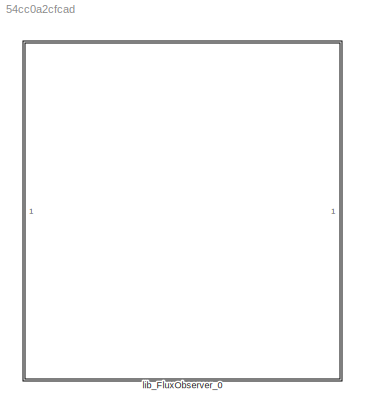
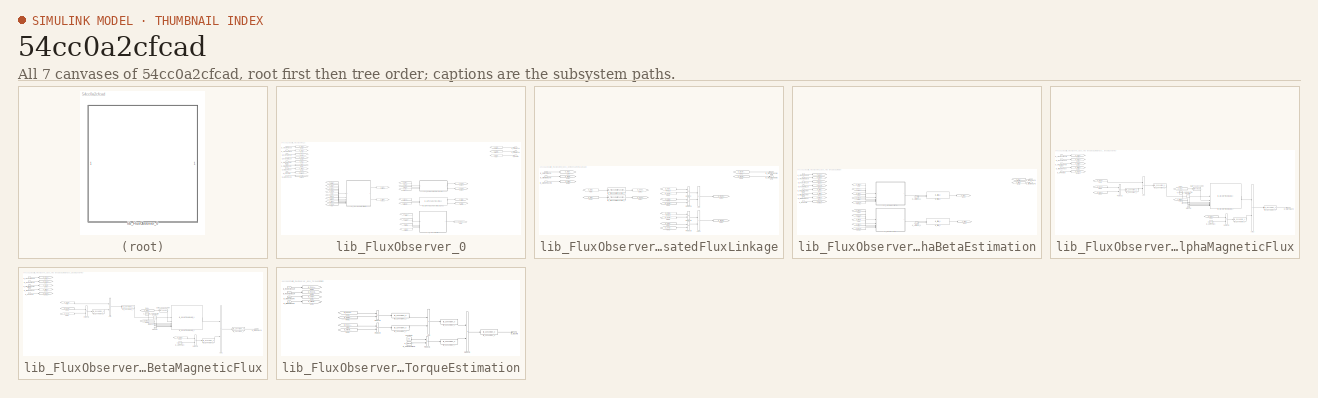
[diagram: thumbnail index - all 7 canvases of the model, root first then tree order]
MODEL slx_54cc0a2cfcad
KIND library
CONFIG AbsTol = auto
CONFIG EnableMultiTasking = off
CONFIG FixedStep = auto
CONFIG MaxStep = auto
CONFIG MinStep = auto
CONFIG RelTol = 1e-3
CONFIG SampleTimeConstraint = Unconstrained
CONFIG SolverName = VariableStepAuto
CONFIG StartTime = 0.0
CONFIG StopTime = 10.0
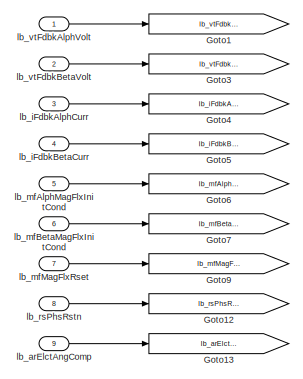
[diagram: lib_FluxObserver_0 - part 1/4, top left region]
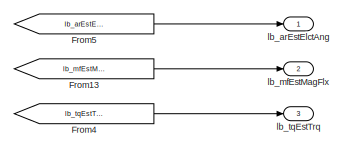
[diagram: lib_FluxObserver_0 - part 2/4, top right region]
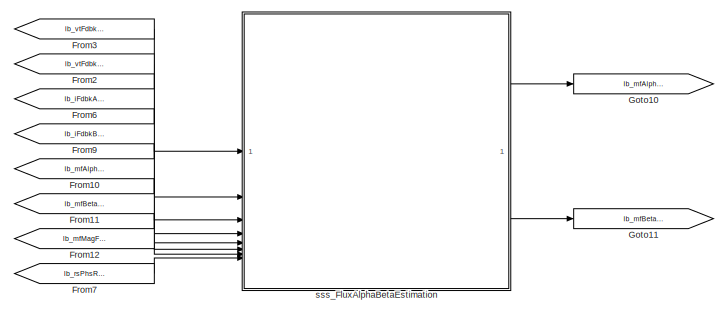
[diagram: lib_FluxObserver_0 - part 3/4, middle left region]
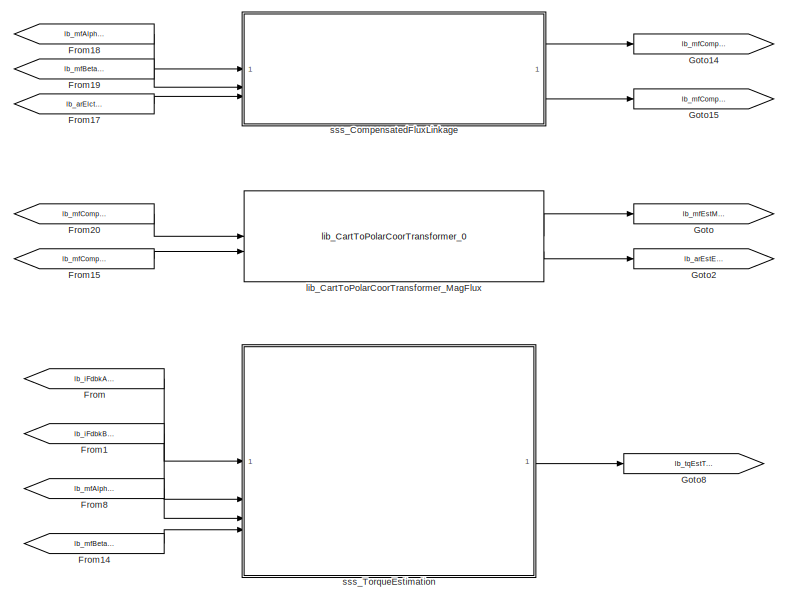
[diagram: lib_FluxObserver_0 - part 4/4, bottom center region]
BLOCK [SubSystem] lib_FluxObserver_0
BLOCK [From] lib_FluxObserver_0/From
  GotoTag = lb_iFdbkAlphCurr
BLOCK [From] lib_FluxObserver_0/From1
  GotoTag = lb_iFdbkBetaCurr
BLOCK [From] lib_FluxObserver_0/From10
  GotoTag = lb_mfAlphMagFlxInitCond
BLOCK [From] lib_FluxObserver_0/From11
  GotoTag = lb_mfBetaMagFlxInitCond
BLOCK [From] lib_FluxObserver_0/From12
  GotoTag = lb_mfMagFlxRset
BLOCK [From] lib_FluxObserver_0/From13
  GotoTag = lb_mfEstMagFlx
BLOCK [From] lib_FluxObserver_0/From14
  GotoTag = lb_mfBetaMagFlx
BLOCK [From] lib_FluxObserver_0/From15
  GotoTag = lb_mfCompBetaMagFlx
BLOCK [From] lib_FluxObserver_0/From17
  GotoTag = lb_arElctAngComp
BLOCK [From] lib_FluxObserver_0/From18
  GotoTag = lb_mfAlphMagFlx
BLOCK [From] lib_FluxObserver_0/From19
  GotoTag = lb_mfBetaMagFlx
BLOCK [From] lib_FluxObserver_0/From2
  GotoTag = lb_vtFdbkBetaVolt
BLOCK [From] lib_FluxObserver_0/From20
  GotoTag = lb_mfCompAlphMagFlx
BLOCK [From] lib_FluxObserver_0/From3
  GotoTag = lb_vtFdbkAlphVolt
BLOCK [From] lib_FluxObserver_0/From4
  GotoTag = lb_tqEstTrq
BLOCK [From] lib_FluxObserver_0/From5
  GotoTag = lb_arEstElctAng
BLOCK [From] lib_FluxObserver_0/From6
  GotoTag = lb_iFdbkAlphCurr
BLOCK [From] lib_FluxObserver_0/From7
  GotoTag = lb_rsPhsRstn
BLOCK [From] lib_FluxObserver_0/From8
  GotoTag = lb_mfAlphMagFlx
BLOCK [From] lib_FluxObserver_0/From9
  GotoTag = lb_iFdbkBetaCurr
BLOCK [Goto] lib_FluxObserver_0/Goto
  GotoTag = lb_mfEstMagFlx
BLOCK [Goto] lib_FluxObserver_0/Goto1
  GotoTag = lb_vtFdbkAlphVolt
BLOCK [Goto] lib_FluxObserver_0/Goto10
  GotoTag = lb_mfAlphMagFlx
BLOCK [Goto] lib_FluxObserver_0/Goto11
  GotoTag = lb_mfBetaMagFlx
BLOCK [Goto] lib_FluxObserver_0/Goto12
  GotoTag = lb_rsPhsRstn
BLOCK [Goto] lib_FluxObserver_0/Goto13
  GotoTag = lb_arElctAngComp
BLOCK [Goto] lib_FluxObserver_0/Goto14
  GotoTag = lb_mfCompAlphMagFlx
BLOCK [Goto] lib_FluxObserver_0/Goto15
  GotoTag = lb_mfCompBetaMagFlx
BLOCK [Goto] lib_FluxObserver_0/Goto2
  GotoTag = lb_arEstElctAng
BLOCK [Goto] lib_FluxObserver_0/Goto3
  GotoTag = lb_vtFdbkBetaVolt
BLOCK [Goto] lib_FluxObserver_0/Goto4
  GotoTag = lb_iFdbkAlphCurr
BLOCK [Goto] lib_FluxObserver_0/Goto5
  GotoTag = lb_iFdbkBetaCurr
BLOCK [Goto] lib_FluxObserver_0/Goto6
  GotoTag = lb_mfAlphMagFlxInitCond
BLOCK [Goto] lib_FluxObserver_0/Goto7
  GotoTag = lb_mfBetaMagFlxInitCond
BLOCK [Goto] lib_FluxObserver_0/Goto8
  GotoTag = lb_tqEstTrq
BLOCK [Goto] lib_FluxObserver_0/Goto9
  GotoTag = lb_mfMagFlxRset
BLOCK [Inport] lib_FluxObserver_0/lb_arElctAngComp
  OutDataTypeStr = fixdt(0,16,pi*2^-15,0)
  Port = 9
BLOCK [Outport] lib_FluxObserver_0/lb_arEstElctAng
BLOCK [Inport] lib_FluxObserver_0/lb_iFdbkAlphCurr
  Port = 3
BLOCK [Inport] lib_FluxObserver_0/lb_iFdbkBetaCurr
  Port = 4
BLOCK [Inport] lib_FluxObserver_0/lb_mfAlphMagFlxInitCond
  Port = 5
BLOCK [Inport] lib_FluxObserver_0/lb_mfBetaMagFlxInitCond
  Port = 6
BLOCK [Outport] lib_FluxObserver_0/lb_mfEstMagFlx
  Port = 2
BLOCK [Inport] lib_FluxObserver_0/lb_mfMagFlxRset
  Port = 7
BLOCK [Inport] lib_FluxObserver_0/lb_rsPhsRstn
  Port = 8
BLOCK [Outport] lib_FluxObserver_0/lb_tqEstTrq
  Port = 3
BLOCK [Inport] lib_FluxObserver_0/lb_vtFdbkAlphVolt
BLOCK [Inport] lib_FluxObserver_0/lb_vtFdbkBetaVolt
  Port = 2
BLOCK [Reference] lib_FluxObserver_0/lib_CartToPolarCoorTransformer_MagFlux  REF=lib_cart_to_polar_coor_transformer/lib_CartToPolarCoorTransformer_0  (lib defined in slx_ee88def4c4dc)
  SourceBlock = lib_cart_to_polar_coor_transformer/lib_CartToPolarCoorTransformer_0
BLOCK [SubSystem] lib_FluxObserver_0/sss_CompensatedFluxLinkage
BLOCK [Sum] lib_FluxObserver_0/sss_CompensatedFluxLinkage/Add
  IconShape = rectangular
  Inputs = +-
  OutDataTypeStr = Inherit: Same as first input
BLOCK [Sum] lib_FluxObserver_0/sss_CompensatedFluxLinkage/Add1
  IconShape = rectangular
  OutDataTypeStr = Inherit: Same as first input
BLOCK [From] lib_FluxObserver_0/sss_CompensatedFluxLinkage/From
  GotoTag = lb_arElctAngComp
BLOCK [From] lib_FluxObserver_0/sss_CompensatedFluxLinkage/From1
  GotoTag = lb_arElctAngComp
BLOCK [From] lib_FluxObserver_0/sss_CompensatedFluxLinkage/From18
  GotoTag = lb_mfAlphMagFlx
BLOCK [From] lib_FluxObserver_0/sss_CompensatedFluxLinkage/From19
  GotoTag = lb_mfBetaMagFlx
BLOCK [From] lib_FluxObserver_0/sss_CompensatedFluxLinkage/From2
  GotoTag = lb_genElctAngCompCos
BLOCK [From] lib_FluxObserver_0/sss_CompensatedFluxLinkage/From3
  GotoTag = lb_genElctAngCompCos
BLOCK [From] lib_FluxObserver_0/sss_CompensatedFluxLinkage/From4
  GotoTag = lb_genElctAngCompSin
BLOCK [From] lib_FluxObserver_0/sss_CompensatedFluxLinkage/From5
  GotoTag = lb_mfBetaMagFlx
BLOCK [From] lib_FluxObserver_0/sss_CompensatedFluxLinkage/From6
  GotoTag = lb_mfCompAlphMagFlx
BLOCK [From] lib_FluxObserver_0/sss_CompensatedFluxLinkage/From7
  GotoTag = lb_mfAlphMagFlx
BLOCK [From] lib_FluxObserver_0/sss_CompensatedFluxLinkage/From8
  GotoTag = lb_genElctAngCompSin
BLOCK [From] lib_FluxObserver_0/sss_CompensatedFluxLinkage/From9
  GotoTag = lb_mfCompBetaMagFlx
BLOCK [Goto] lib_FluxObserver_0/sss_CompensatedFluxLinkage/Goto
  GotoTag = lb_mfAlphMagFlx
BLOCK [Goto] lib_FluxObserver_0/sss_CompensatedFluxLinkage/Goto1
  GotoTag = lb_mfBetaMagFlx
BLOCK [Goto] lib_FluxObserver_0/sss_CompensatedFluxLinkage/Goto2
  GotoTag = lb_arElctAngComp
BLOCK [Goto] lib_FluxObserver_0/sss_CompensatedFluxLinkage/Goto3
  GotoTag = lb_genElctAngCompSin
BLOCK [Goto] lib_FluxObserver_0/sss_CompensatedFluxLinkage/Goto4
  GotoTag = lb_genElctAngCompCos
BLOCK [Goto] lib_FluxObserver_0/sss_CompensatedFluxLinkage/Goto5
  GotoTag = lb_mfCompAlphMagFlx
BLOCK [Goto] lib_FluxObserver_0/sss_CompensatedFluxLinkage/Goto6
  GotoTag = lb_mfCompBetaMagFlx
BLOCK [Product] lib_FluxObserver_0/sss_CompensatedFluxLinkage/Product
  OutDataTypeStr = Inherit: Same as first input
BLOCK [Product] lib_FluxObserver_0/sss_CompensatedFluxLinkage/Product1
  OutDataTypeStr = Inherit: Same as first input
BLOCK [Product] lib_FluxObserver_0/sss_CompensatedFluxLinkage/Product2
  OutDataTypeStr = Inherit: Same as first input
BLOCK [Product] lib_FluxObserver_0/sss_CompensatedFluxLinkage/Product3
  OutDataTypeStr = Inherit: Same as first input
BLOCK [Inport] lib_FluxObserver_0/sss_CompensatedFluxLinkage/lb_arElctAngComp
  Port = 3
BLOCK [Inport] lib_FluxObserver_0/sss_CompensatedFluxLinkage/lb_mfAlphMagFlx
BLOCK [Inport] lib_FluxObserver_0/sss_CompensatedFluxLinkage/lb_mfBetaMagFlx
  Port = 2
BLOCK [Outport] lib_FluxObserver_0/sss_CompensatedFluxLinkage/lb_mfCompAlphMagFlx
BLOCK [Outport] lib_FluxObserver_0/sss_CompensatedFluxLinkage/lb_mfCompBetaMagFlx
  Port = 2
BLOCK [Reference] lib_FluxObserver_0/sss_CompensatedFluxLinkage/lib_TrigonometricFunction_1  REF=lib_trigonometric_function/lib_TrigonometricFunction_0  (lib defined in slx_582fdfe82842)
  SourceBlock = lib_trigonometric_function/lib_TrigonometricFunction_0
BLOCK [Reference] lib_FluxObserver_0/sss_CompensatedFluxLinkage/lib_TrigonometricFunction_2  REF=lib_trigonometric_function/lib_TrigonometricFunction_0  (lib defined in slx_582fdfe82842)
  SourceBlock = lib_trigonometric_function/lib_TrigonometricFunction_0
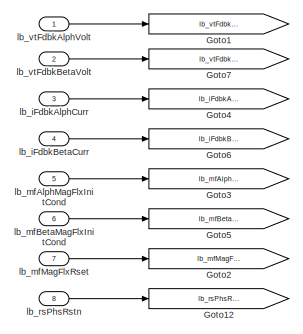
[diagram: lib_FluxObserver_0/sss_FluxAlphaBetaEstimation - part 1/3, top left region]
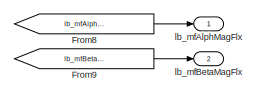
[diagram: lib_FluxObserver_0/sss_FluxAlphaBetaEstimation - part 2/3, top right region]
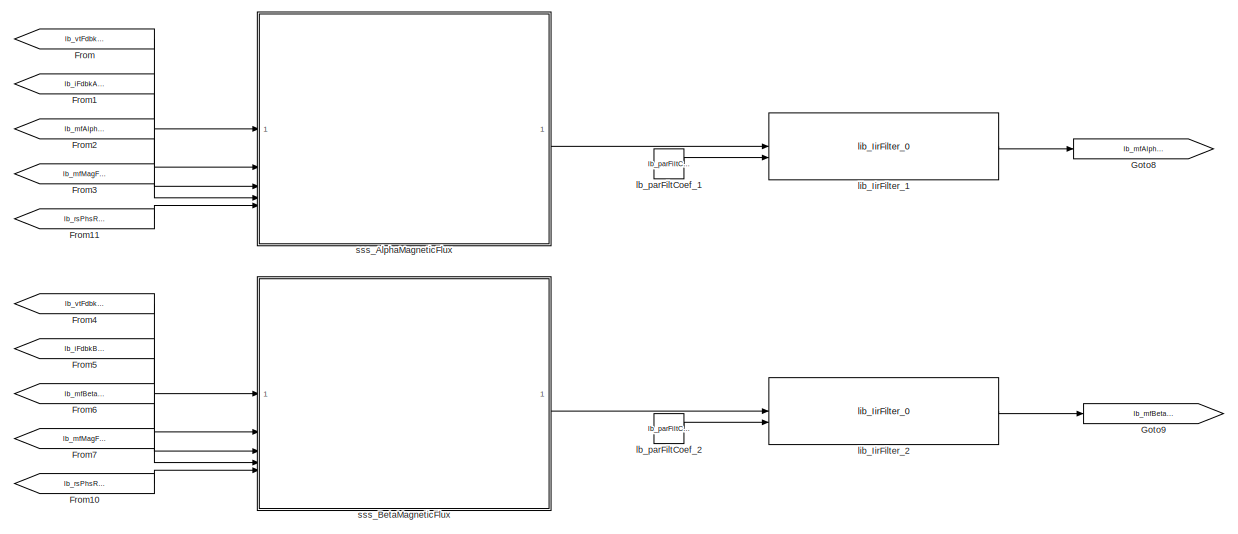
[diagram: lib_FluxObserver_0/sss_FluxAlphaBetaEstimation - part 3/3, center side, full height]
BLOCK [SubSystem] lib_FluxObserver_0/sss_FluxAlphaBetaEstimation
BLOCK [From] lib_FluxObserver_0/sss_FluxAlphaBetaEstimation/From
  GotoTag = lb_vtFdbkAlphVolt
BLOCK [From] lib_FluxObserver_0/sss_FluxAlphaBetaEstimation/From1
  GotoTag = lb_iFdbkAlphCurr
BLOCK [From] lib_FluxObserver_0/sss_FluxAlphaBetaEstimation/From10
  GotoTag = lb_rsPhsRstn
BLOCK [From] lib_FluxObserver_0/sss_FluxAlphaBetaEstimation/From11
  GotoTag = lb_rsPhsRstn
BLOCK [From] lib_FluxObserver_0/sss_FluxAlphaBetaEstimation/From2
  GotoTag = lb_mfAlphMagFlxInitCond
BLOCK [From] lib_FluxObserver_0/sss_FluxAlphaBetaEstimation/From3
  GotoTag = lb_mfMagFlxRset
BLOCK [From] lib_FluxObserver_0/sss_FluxAlphaBetaEstimation/From4
  GotoTag = lb_vtFdbkBetaVolt
BLOCK [From] lib_FluxObserver_0/sss_FluxAlphaBetaEstimation/From5
  GotoTag = lb_iFdbkBetaCurr
BLOCK [From] lib_FluxObserver_0/sss_FluxAlphaBetaEstimation/From6
  GotoTag = lb_mfBetaMagFlxInitCond
BLOCK [From] lib_FluxObserver_0/sss_FluxAlphaBetaEstimation/From7
  GotoTag = lb_mfMagFlxRset
BLOCK [From] lib_FluxObserver_0/sss_FluxAlphaBetaEstimation/From8
  GotoTag = lb_mfAlphMagFlx
BLOCK [From] lib_FluxObserver_0/sss_FluxAlphaBetaEstimation/From9
  GotoTag = lb_mfBetaMagFlx
BLOCK [Goto] lib_FluxObserver_0/sss_FluxAlphaBetaEstimation/Goto1
  GotoTag = lb_vtFdbkAlphVolt
BLOCK [Goto] lib_FluxObserver_0/sss_FluxAlphaBetaEstimation/Goto12
  GotoTag = lb_rsPhsRstn
BLOCK [Goto] lib_FluxObserver_0/sss_FluxAlphaBetaEstimation/Goto2
  GotoTag = lb_mfMagFlxRset
BLOCK [Goto] lib_FluxObserver_0/sss_FluxAlphaBetaEstimation/Goto3
  GotoTag = lb_mfAlphMagFlxInitCond
BLOCK [Goto] lib_FluxObserver_0/sss_FluxAlphaBetaEstimation/Goto4
  GotoTag = lb_iFdbkAlphCurr
BLOCK [Goto] lib_FluxObserver_0/sss_FluxAlphaBetaEstimation/Goto5
  GotoTag = lb_mfBetaMagFlxInitCond
BLOCK [Goto] lib_FluxObserver_0/sss_FluxAlphaBetaEstimation/Goto6
  GotoTag = lb_iFdbkBetaCurr
BLOCK [Goto] lib_FluxObserver_0/sss_FluxAlphaBetaEstimation/Goto7
  GotoTag = lb_vtFdbkBetaVolt
BLOCK [Goto] lib_FluxObserver_0/sss_FluxAlphaBetaEstimation/Goto8
  GotoTag = lb_mfAlphMagFlx
BLOCK [Goto] lib_FluxObserver_0/sss_FluxAlphaBetaEstimation/Goto9
  GotoTag = lb_mfBetaMagFlx
BLOCK [Inport] lib_FluxObserver_0/sss_FluxAlphaBetaEstimation/lb_iFdbkAlphCurr
  Port = 3
BLOCK [Inport] lib_FluxObserver_0/sss_FluxAlphaBetaEstimation/lb_iFdbkBetaCurr
  Port = 4
BLOCK [Outport] lib_FluxObserver_0/sss_FluxAlphaBetaEstimation/lb_mfAlphMagFlx
BLOCK [Inport] lib_FluxObserver_0/sss_FluxAlphaBetaEstimation/lb_mfAlphMagFlxInitCond
  Port = 5
BLOCK [Outport] lib_FluxObserver_0/sss_FluxAlphaBetaEstimation/lb_mfBetaMagFlx
  Port = 2
BLOCK [Inport] lib_FluxObserver_0/sss_FluxAlphaBetaEstimation/lb_mfBetaMagFlxInitCond
  Port = 6
BLOCK [Inport] lib_FluxObserver_0/sss_FluxAlphaBetaEstimation/lb_mfMagFlxRset
  Port = 7
BLOCK [Constant] lib_FluxObserver_0/sss_FluxAlphaBetaEstimation/lb_parFiltCoef_1
  Value = lb_parFiltCoef
BLOCK [Constant] lib_FluxObserver_0/sss_FluxAlphaBetaEstimation/lb_parFiltCoef_2
  Value = lb_parFiltCoef
BLOCK [Inport] lib_FluxObserver_0/sss_FluxAlphaBetaEstimation/lb_rsPhsRstn
  Port = 8
BLOCK [Inport] lib_FluxObserver_0/sss_FluxAlphaBetaEstimation/lb_vtFdbkAlphVolt
BLOCK [Inport] lib_FluxObserver_0/sss_FluxAlphaBetaEstimation/lb_vtFdbkBetaVolt
  Port = 2
BLOCK [Reference] lib_FluxObserver_0/sss_FluxAlphaBetaEstimation/lib_IirFilter_1  REF=lib_iir_filter/lib_IirFilter_0  (lib defined in slx_5c8a7357b118)
  SourceBlock = lib_iir_filter/lib_IirFilter_0
BLOCK [Reference] lib_FluxObserver_0/sss_FluxAlphaBetaEstimation/lib_IirFilter_2  REF=lib_iir_filter/lib_IirFilter_0  (lib defined in slx_5c8a7357b118)
  SourceBlock = lib_iir_filter/lib_IirFilter_0
BLOCK [SubSystem] lib_FluxObserver_0/sss_FluxAlphaBetaEstimation/sss_AlphaMagneticFlux
BLOCK [Sum] lib_FluxObserver_0/sss_FluxAlphaBetaEstimation/sss_AlphaMagneticFlux/Add
  IconShape = rectangular
  Inputs = +-
  OutDataTypeStr = Inherit: Inherit via back propagation
BLOCK [Sum] lib_FluxObserver_0/sss_FluxAlphaBetaEstimation/sss_AlphaMagneticFlux/Add2
  IconShape = rectangular
  Inputs = +-
  OutDataTypeStr = Inherit: Inherit via back propagation
BLOCK [Constant] lib_FluxObserver_0/sss_FluxAlphaBetaEstimation/sss_AlphaMagneticFlux/Constant
  OutDataTypeStr = uint8
  Value = 0
BLOCK [DataTypeConversion] lib_FluxObserver_0/sss_FluxAlphaBetaEstimation/sss_AlphaMagneticFlux/Data Type Conversion
  RndMeth = Floor
  SaturateOnIntegerOverflow = off
BLOCK [From] lib_FluxObserver_0/sss_FluxAlphaBetaEstimation/sss_AlphaMagneticFlux/From
  GotoTag = lb_vtFdbkAlphVolt
BLOCK [From] lib_FluxObserver_0/sss_FluxAlphaBetaEstimation/sss_AlphaMagneticFlux/From1
  GotoTag = lb_iFdbkAlphCurr
BLOCK [From] lib_FluxObserver_0/sss_FluxAlphaBetaEstimation/sss_AlphaMagneticFlux/From2
  GotoTag = lb_iFdbkAlphCurr
BLOCK [From] lib_FluxObserver_0/sss_FluxAlphaBetaEstimation/sss_AlphaMagneticFlux/From3
  GotoTag = lb_mfMagFlxRset
BLOCK [From] lib_FluxObserver_0/sss_FluxAlphaBetaEstimation/sss_AlphaMagneticFlux/From4
  GotoTag = lb_mfAlphMagFlxInitCond
BLOCK [From] lib_FluxObserver_0/sss_FluxAlphaBetaEstimation/sss_AlphaMagneticFlux/From5
  GotoTag = lb_rsPhsRstn
BLOCK [Goto] lib_FluxObserver_0/sss_FluxAlphaBetaEstimation/sss_AlphaMagneticFlux/Goto1
  GotoTag = lb_vtFdbkAlphVolt
BLOCK [Goto] lib_FluxObserver_0/sss_FluxAlphaBetaEstimation/sss_AlphaMagneticFlux/Goto12
  GotoTag = lb_rsPhsRstn
BLOCK [Goto] lib_FluxObserver_0/sss_FluxAlphaBetaEstimation/sss_AlphaMagneticFlux/Goto2
  GotoTag = lb_mfMagFlxRset
BLOCK [Goto] lib_FluxObserver_0/sss_FluxAlphaBetaEstimation/sss_AlphaMagneticFlux/Goto3
  GotoTag = lb_mfAlphMagFlxInitCond
BLOCK [Goto] lib_FluxObserver_0/sss_FluxAlphaBetaEstimation/sss_AlphaMagneticFlux/Goto4
  GotoTag = lb_iFdbkAlphCurr
BLOCK [Ground] lib_FluxObserver_0/sss_FluxAlphaBetaEstimation/sss_AlphaMagneticFlux/Ground1
BLOCK [Ground] lib_FluxObserver_0/sss_FluxAlphaBetaEstimation/sss_AlphaMagneticFlux/Ground2
BLOCK [Product] lib_FluxObserver_0/sss_FluxAlphaBetaEstimation/sss_AlphaMagneticFlux/Product1
  OutDataTypeStr = Inherit: Inherit via back propagation
BLOCK [Product] lib_FluxObserver_0/sss_FluxAlphaBetaEstimation/sss_AlphaMagneticFlux/Product3
  OutDataTypeStr = Inherit: Inherit via back propagation
BLOCK [Inport] lib_FluxObserver_0/sss_FluxAlphaBetaEstimation/sss_AlphaMagneticFlux/lb_iFdbkAlphCurr
  Port = 2
BLOCK [Outport] lib_FluxObserver_0/sss_FluxAlphaBetaEstimation/sss_AlphaMagneticFlux/lb_mfAlphMagFlx
BLOCK [Inport] lib_FluxObserver_0/sss_FluxAlphaBetaEstimation/sss_AlphaMagneticFlux/lb_mfAlphMagFlxInitCond
  Port = 3
BLOCK [Inport] lib_FluxObserver_0/sss_FluxAlphaBetaEstimation/sss_AlphaMagneticFlux/lb_mfMagFlxRset
  Port = 4
BLOCK [Constant] lib_FluxObserver_0/sss_FluxAlphaBetaEstimation/sss_AlphaMagneticFlux/lb_parPhsIndc
  Value = lb_parPhsIndc
BLOCK [Constant] lib_FluxObserver_0/sss_FluxAlphaBetaEstimation/sss_AlphaMagneticFlux/lb_parSampTime
  Value = lb_parSampTime
BLOCK [Inport] lib_FluxObserver_0/sss_FluxAlphaBetaEstimation/sss_AlphaMagneticFlux/lb_rsPhsRstn
  Port = 5
BLOCK [Inport] lib_FluxObserver_0/sss_FluxAlphaBetaEstimation/sss_AlphaMagneticFlux/lb_vtFdbkAlphVolt
BLOCK [Reference] lib_FluxObserver_0/sss_FluxAlphaBetaEstimation/sss_AlphaMagneticFlux/lib_Conversion_1  REF=lib_conversion/lib_Conversion_0  (lib defined in slx_7f5c0202220d)
  SourceBlock = lib_conversion/lib_Conversion_0
BLOCK [Reference] lib_FluxObserver_0/sss_FluxAlphaBetaEstimation/sss_AlphaMagneticFlux/lib_Conversion_2  REF=lib_conversion/lib_Conversion_0  (lib defined in slx_7f5c0202220d)
  SourceBlock = lib_conversion/lib_Conversion_0
BLOCK [Reference] lib_FluxObserver_0/sss_FluxAlphaBetaEstimation/sss_AlphaMagneticFlux/lib_Conversion_3  REF=lib_conversion/lib_Conversion_0  (lib defined in slx_7f5c0202220d)
  SourceBlock = lib_conversion/lib_Conversion_0
BLOCK [Reference] lib_FluxObserver_0/sss_FluxAlphaBetaEstimation/sss_AlphaMagneticFlux/lib_Conversion_4  REF=lib_conversion/lib_Conversion_0  (lib defined in slx_7f5c0202220d)
  SourceBlock = lib_conversion/lib_Conversion_0
BLOCK [Reference] lib_FluxObserver_0/sss_FluxAlphaBetaEstimation/sss_AlphaMagneticFlux/lib_DiscreteTimeIntegrator_1  REF=lib_discrete_time_integrator/lib_DiscreteTimeIntegrator_0
  SourceBlock = lib_discrete_time_integrator/lib_DiscreteTimeIntegrator_0
BLOCK [SubSystem] lib_FluxObserver_0/sss_FluxAlphaBetaEstimation/sss_BetaMagneticFlux
BLOCK [Sum] lib_FluxObserver_0/sss_FluxAlphaBetaEstimation/sss_BetaMagneticFlux/Add
  IconShape = rectangular
  Inputs = +-
  OutDataTypeStr = Inherit: Inherit via back propagation
BLOCK [Sum] lib_FluxObserver_0/sss_FluxAlphaBetaEstimation/sss_BetaMagneticFlux/Add1
  IconShape = rectangular
  Inputs = +-
  OutDataTypeStr = Inherit: Inherit via back propagation
BLOCK [Constant] lib_FluxObserver_0/sss_FluxAlphaBetaEstimation/sss_BetaMagneticFlux/Constant
  OutDataTypeStr = uint8
  Value = 0
BLOCK [DataTypeConversion] lib_FluxObserver_0/sss_FluxAlphaBetaEstimation/sss_BetaMagneticFlux/Data Type Conversion
  RndMeth = Floor
  SaturateOnIntegerOverflow = off
BLOCK [From] lib_FluxObserver_0/sss_FluxAlphaBetaEstimation/sss_BetaMagneticFlux/From
  GotoTag = lb_vtFdbkBetaVolt
BLOCK [From] lib_FluxObserver_0/sss_FluxAlphaBetaEstimation/sss_BetaMagneticFlux/From1
  GotoTag = lb_iFdbkBetaCurr
BLOCK [From] lib_FluxObserver_0/sss_FluxAlphaBetaEstimation/sss_BetaMagneticFlux/From2
  GotoTag = lb_iFdbkBetaCurr
BLOCK [From] lib_FluxObserver_0/sss_FluxAlphaBetaEstimation/sss_BetaMagneticFlux/From3
  GotoTag = lb_mfMagFlxRset
BLOCK [From] lib_FluxObserver_0/sss_FluxAlphaBetaEstimation/sss_BetaMagneticFlux/From4
  GotoTag = lb_mfBetaMagFlxInitCond
BLOCK [From] lib_FluxObserver_0/sss_FluxAlphaBetaEstimation/sss_BetaMagneticFlux/From5
  GotoTag = lb_rsPhsRstn
BLOCK [Goto] lib_FluxObserver_0/sss_FluxAlphaBetaEstimation/sss_BetaMagneticFlux/Goto1
  GotoTag = lb_vtFdbkBetaVolt
BLOCK [Goto] lib_FluxObserver_0/sss_FluxAlphaBetaEstimation/sss_BetaMagneticFlux/Goto12
  GotoTag = lb_rsPhsRstn
BLOCK [Goto] lib_FluxObserver_0/sss_FluxAlphaBetaEstimation/sss_BetaMagneticFlux/Goto2
  GotoTag = lb_mfMagFlxRset
BLOCK [Goto] lib_FluxObserver_0/sss_FluxAlphaBetaEstimation/sss_BetaMagneticFlux/Goto3
  GotoTag = lb_mfBetaMagFlxInitCond
BLOCK [Goto] lib_FluxObserver_0/sss_FluxAlphaBetaEstimation/sss_BetaMagneticFlux/Goto4
  GotoTag = lb_iFdbkBetaCurr
BLOCK [Ground] lib_FluxObserver_0/sss_FluxAlphaBetaEstimation/sss_BetaMagneticFlux/Ground1
BLOCK [Ground] lib_FluxObserver_0/sss_FluxAlphaBetaEstimation/sss_BetaMagneticFlux/Ground2
BLOCK [Product] lib_FluxObserver_0/sss_FluxAlphaBetaEstimation/sss_BetaMagneticFlux/Product1
  OutDataTypeStr = Inherit: Inherit via back propagation
BLOCK [Product] lib_FluxObserver_0/sss_FluxAlphaBetaEstimation/sss_BetaMagneticFlux/Product2
  OutDataTypeStr = Inherit: Inherit via back propagation
BLOCK [Inport] lib_FluxObserver_0/sss_FluxAlphaBetaEstimation/sss_BetaMagneticFlux/lb_iFdbkBetaCurr
  Port = 2
BLOCK [Outport] lib_FluxObserver_0/sss_FluxAlphaBetaEstimation/sss_BetaMagneticFlux/lb_mfBetaMagFlx
BLOCK [Inport] lib_FluxObserver_0/sss_FluxAlphaBetaEstimation/sss_BetaMagneticFlux/lb_mfBetaMagFlxInitCond
  Port = 3
BLOCK [Inport] lib_FluxObserver_0/sss_FluxAlphaBetaEstimation/sss_BetaMagneticFlux/lb_mfMagFlxRset
  Port = 4
BLOCK [Constant] lib_FluxObserver_0/sss_FluxAlphaBetaEstimation/sss_BetaMagneticFlux/lb_parPhsIndc
  Value = lb_parPhsIndc
BLOCK [Constant] lib_FluxObserver_0/sss_FluxAlphaBetaEstimation/sss_BetaMagneticFlux/lb_parSampTime
  Value = lb_parSampTime
BLOCK [Inport] lib_FluxObserver_0/sss_FluxAlphaBetaEstimation/sss_BetaMagneticFlux/lb_rsPhsRstn
  Port = 5
BLOCK [Inport] lib_FluxObserver_0/sss_FluxAlphaBetaEstimation/sss_BetaMagneticFlux/lb_vtFdbkBetaVolt
BLOCK [Reference] lib_FluxObserver_0/sss_FluxAlphaBetaEstimation/sss_BetaMagneticFlux/lib_Conversion_1  REF=lib_conversion/lib_Conversion_0  (lib defined in slx_7f5c0202220d)
  SourceBlock = lib_conversion/lib_Conversion_0
BLOCK [Reference] lib_FluxObserver_0/sss_FluxAlphaBetaEstimation/sss_BetaMagneticFlux/lib_Conversion_2  REF=lib_conversion/lib_Conversion_0  (lib defined in slx_7f5c0202220d)
  SourceBlock = lib_conversion/lib_Conversion_0
BLOCK [Reference] lib_FluxObserver_0/sss_FluxAlphaBetaEstimation/sss_BetaMagneticFlux/lib_Conversion_3  REF=lib_conversion/lib_Conversion_0  (lib defined in slx_7f5c0202220d)
  SourceBlock = lib_conversion/lib_Conversion_0
BLOCK [Reference] lib_FluxObserver_0/sss_FluxAlphaBetaEstimation/sss_BetaMagneticFlux/lib_Conversion_4  REF=lib_conversion/lib_Conversion_0  (lib defined in slx_7f5c0202220d)
  SourceBlock = lib_conversion/lib_Conversion_0
BLOCK [Reference] lib_FluxObserver_0/sss_FluxAlphaBetaEstimation/sss_BetaMagneticFlux/lib_DiscreteTimeIntegrator_1  REF=lib_discrete_time_integrator/lib_DiscreteTimeIntegrator_0
  SourceBlock = lib_discrete_time_integrator/lib_DiscreteTimeIntegrator_0
BLOCK [SubSystem] lib_FluxObserver_0/sss_TorqueEstimation
BLOCK [Sum] lib_FluxObserver_0/sss_TorqueEstimation/Add
  IconShape = rectangular
  Inputs = +-
  OutDataTypeStr = Inherit: Inherit via back propagation
BLOCK [Constant] lib_FluxObserver_0/sss_TorqueEstimation/Constant3
  OutDataTypeStr = fixdt(0,16,2^-15,0)
  Value = 3/2
BLOCK [From] lib_FluxObserver_0/sss_TorqueEstimation/From
  GotoTag = lb_iFdbkAlphCurr
BLOCK [From] lib_FluxObserver_0/sss_TorqueEstimation/From1
  GotoTag = lb_mfAlphMagFlx
BLOCK [From] lib_FluxObserver_0/sss_TorqueEstimation/From2
  GotoTag = lb_mfBetaMagFlx
BLOCK [From] lib_FluxObserver_0/sss_TorqueEstimation/From3
  GotoTag = lb_iFdbkBetaCurr
BLOCK [Goto] lib_FluxObserver_0/sss_TorqueEstimation/Goto2
  GotoTag = lb_mfAlphMagFlx
BLOCK [Goto] lib_FluxObserver_0/sss_TorqueEstimation/Goto3
  GotoTag = lb_mfBetaMagFlx
BLOCK [Goto] lib_FluxObserver_0/sss_TorqueEstimation/Goto4
  GotoTag = lb_iFdbkAlphCurr
BLOCK [Goto] lib_FluxObserver_0/sss_TorqueEstimation/Goto5
  GotoTag = lb_iFdbkBetaCurr
BLOCK [Product] lib_FluxObserver_0/sss_TorqueEstimation/Product1
  OutDataTypeStr = Inherit: Inherit via back propagation
BLOCK [Product] lib_FluxObserver_0/sss_TorqueEstimation/Product2
  OutDataTypeStr = Inherit: Inherit via back propagation
BLOCK [Product] lib_FluxObserver_0/sss_TorqueEstimation/Product3
  OutDataTypeStr = Inherit: Inherit via back propagation
BLOCK [Product] lib_FluxObserver_0/sss_TorqueEstimation/Product4
  OutDataTypeStr = Inherit: Inherit via back propagation
BLOCK [Inport] lib_FluxObserver_0/sss_TorqueEstimation/lb_iFdbkAlphCurr
BLOCK [Inport] lib_FluxObserver_0/sss_TorqueEstimation/lb_iFdbkBetaCurr
  Port = 2
BLOCK [Inport] lib_FluxObserver_0/sss_TorqueEstimation/lb_mfAlphMagFlx
  Port = 3
BLOCK [Inport] lib_FluxObserver_0/sss_TorqueEstimation/lb_mfBetaMagFlx
  Port = 4
BLOCK [Constant] lib_FluxObserver_0/sss_TorqueEstimation/lb_parPolePairNum
  Value = lb_parPolePairNum
BLOCK [Outport] lib_FluxObserver_0/sss_TorqueEstimation/lb_tqEstTrq
BLOCK [Reference] lib_FluxObserver_0/sss_TorqueEstimation/lib_Conversion_1  REF=lib_conversion/lib_Conversion_0  (lib defined in slx_7f5c0202220d)
  SourceBlock = lib_conversion/lib_Conversion_0
BLOCK [Reference] lib_FluxObserver_0/sss_TorqueEstimation/lib_Conversion_2  REF=lib_conversion/lib_Conversion_0  (lib defined in slx_7f5c0202220d)
  SourceBlock = lib_conversion/lib_Conversion_0
BLOCK [Reference] lib_FluxObserver_0/sss_TorqueEstimation/lib_Conversion_3  REF=lib_conversion/lib_Conversion_0  (lib defined in slx_7f5c0202220d)
  SourceBlock = lib_conversion/lib_Conversion_0
BLOCK [Reference] lib_FluxObserver_0/sss_TorqueEstimation/lib_Conversion_4  REF=lib_conversion/lib_Conversion_0  (lib defined in slx_7f5c0202220d)
  SourceBlock = lib_conversion/lib_Conversion_0
BLOCK [Reference] lib_FluxObserver_0/sss_TorqueEstimation/lib_Conversion_5  REF=lib_conversion/lib_Conversion_0  (lib defined in slx_7f5c0202220d)
  SourceBlock = lib_conversion/lib_Conversion_0
LINE lib_FluxObserver_0/From10:1 -> lib_FluxObserver_0/sss_FluxAlphaBetaEstimation:5
LINE lib_FluxObserver_0/From11:1 -> lib_FluxObserver_0/sss_FluxAlphaBetaEstimation:6
LINE lib_FluxObserver_0/From12:1 -> lib_FluxObserver_0/sss_FluxAlphaBetaEstimation:7
LINE lib_FluxObserver_0/From13:1 -> lib_FluxObserver_0/lb_mfEstMagFlx:1
LINE lib_FluxObserver_0/From14:1 -> lib_FluxObserver_0/sss_TorqueEstimation:4
LINE lib_FluxObserver_0/From15:1 -> lib_FluxObserver_0/lib_CartToPolarCoorTransformer_MagFlux:2
LINE lib_FluxObserver_0/From17:1 -> lib_FluxObserver_0/sss_CompensatedFluxLinkage:3
LINE lib_FluxObserver_0/From18:1 -> lib_FluxObserver_0/sss_CompensatedFluxLinkage:1
LINE lib_FluxObserver_0/From19:1 -> lib_FluxObserver_0/sss_CompensatedFluxLinkage:2
LINE lib_FluxObserver_0/From1:1 -> lib_FluxObserver_0/sss_TorqueEstimation:2
LINE lib_FluxObserver_0/From20:1 -> lib_FluxObserver_0/lib_CartToPolarCoorTransformer_MagFlux:1
LINE lib_FluxObserver_0/From2:1 -> lib_FluxObserver_0/sss_FluxAlphaBetaEstimation:2
LINE lib_FluxObserver_0/From3:1 -> lib_FluxObserver_0/sss_FluxAlphaBetaEstimation:1
LINE lib_FluxObserver_0/From4:1 -> lib_FluxObserver_0/lb_tqEstTrq:1
LINE lib_FluxObserver_0/From5:1 -> lib_FluxObserver_0/lb_arEstElctAng:1
LINE lib_FluxObserver_0/From6:1 -> lib_FluxObserver_0/sss_FluxAlphaBetaEstimation:3
LINE lib_FluxObserver_0/From7:1 -> lib_FluxObserver_0/sss_FluxAlphaBetaEstimation:8
LINE lib_FluxObserver_0/From8:1 -> lib_FluxObserver_0/sss_TorqueEstimation:3
LINE lib_FluxObserver_0/From9:1 -> lib_FluxObserver_0/sss_FluxAlphaBetaEstimation:4
LINE lib_FluxObserver_0/From:1 -> lib_FluxObserver_0/sss_TorqueEstimation:1
LINE lib_FluxObserver_0/lb_arElctAngComp:1 -> lib_FluxObserver_0/Goto13:1
LINE lib_FluxObserver_0/lb_iFdbkAlphCurr:1 -> lib_FluxObserver_0/Goto4:1
LINE lib_FluxObserver_0/lb_iFdbkBetaCurr:1 -> lib_FluxObserver_0/Goto5:1
LINE lib_FluxObserver_0/lb_mfAlphMagFlxInitCond:1 -> lib_FluxObserver_0/Goto6:1
LINE lib_FluxObserver_0/lb_mfBetaMagFlxInitCond:1 -> lib_FluxObserver_0/Goto7:1
LINE lib_FluxObserver_0/lb_mfMagFlxRset:1 -> lib_FluxObserver_0/Goto9:1
LINE lib_FluxObserver_0/lb_rsPhsRstn:1 -> lib_FluxObserver_0/Goto12:1
LINE lib_FluxObserver_0/lb_vtFdbkAlphVolt:1 -> lib_FluxObserver_0/Goto1:1
LINE lib_FluxObserver_0/lb_vtFdbkBetaVolt:1 -> lib_FluxObserver_0/Goto3:1
LINE lib_FluxObserver_0/lib_CartToPolarCoorTransformer_MagFlux:1 -> lib_FluxObserver_0/Goto:1
LINE lib_FluxObserver_0/lib_CartToPolarCoorTransformer_MagFlux:2 -> lib_FluxObserver_0/Goto2:1
LINE lib_FluxObserver_0/sss_CompensatedFluxLinkage/Add1:1 -> lib_FluxObserver_0/sss_CompensatedFluxLinkage/Goto6:1
LINE lib_FluxObserver_0/sss_CompensatedFluxLinkage/Add:1 -> lib_FluxObserver_0/sss_CompensatedFluxLinkage/Goto5:1
LINE lib_FluxObserver_0/sss_CompensatedFluxLinkage/From18:1 -> lib_FluxObserver_0/sss_CompensatedFluxLinkage/Product:1
LINE lib_FluxObserver_0/sss_CompensatedFluxLinkage/From19:1 -> lib_FluxObserver_0/sss_CompensatedFluxLinkage/Product2:1
LINE lib_FluxObserver_0/sss_CompensatedFluxLinkage/From1:1 -> lib_FluxObserver_0/sss_CompensatedFluxLinkage/lib_TrigonometricFunction_2:1
LINE lib_FluxObserver_0/sss_CompensatedFluxLinkage/From2:1 -> lib_FluxObserver_0/sss_CompensatedFluxLinkage/Product:2
LINE lib_FluxObserver_0/sss_CompensatedFluxLinkage/From3:1 -> lib_FluxObserver_0/sss_CompensatedFluxLinkage/Product2:2
LINE lib_FluxObserver_0/sss_CompensatedFluxLinkage/From4:1 -> lib_FluxObserver_0/sss_CompensatedFluxLinkage/Product1:2
LINE lib_FluxObserver_0/sss_CompensatedFluxLinkage/From5:1 -> lib_FluxObserver_0/sss_CompensatedFluxLinkage/Product1:1
LINE lib_FluxObserver_0/sss_CompensatedFluxLinkage/From6:1 -> lib_FluxObserver_0/sss_CompensatedFluxLinkage/lb_mfCompAlphMagFlx:1
LINE lib_FluxObserver_0/sss_CompensatedFluxLinkage/From7:1 -> lib_FluxObserver_0/sss_CompensatedFluxLinkage/Product3:1
LINE lib_FluxObserver_0/sss_CompensatedFluxLinkage/From8:1 -> lib_FluxObserver_0/sss_CompensatedFluxLinkage/Product3:2
LINE lib_FluxObserver_0/sss_CompensatedFluxLinkage/From9:1 -> lib_FluxObserver_0/sss_CompensatedFluxLinkage/lb_mfCompBetaMagFlx:1
LINE lib_FluxObserver_0/sss_CompensatedFluxLinkage/From:1 -> lib_FluxObserver_0/sss_CompensatedFluxLinkage/lib_TrigonometricFunction_1:1
LINE lib_FluxObserver_0/sss_CompensatedFluxLinkage/Product1:1 -> lib_FluxObserver_0/sss_CompensatedFluxLinkage/Add:2
LINE lib_FluxObserver_0/sss_CompensatedFluxLinkage/Product2:1 -> lib_FluxObserver_0/sss_CompensatedFluxLinkage/Add1:1
LINE lib_FluxObserver_0/sss_CompensatedFluxLinkage/Product3:1 -> lib_FluxObserver_0/sss_CompensatedFluxLinkage/Add1:2
LINE lib_FluxObserver_0/sss_CompensatedFluxLinkage/Product:1 -> lib_FluxObserver_0/sss_CompensatedFluxLinkage/Add:1
LINE lib_FluxObserver_0/sss_CompensatedFluxLinkage/lb_arElctAngComp:1 -> lib_FluxObserver_0/sss_CompensatedFluxLinkage/Goto2:1
LINE lib_FluxObserver_0/sss_CompensatedFluxLinkage/lb_mfAlphMagFlx:1 -> lib_FluxObserver_0/sss_CompensatedFluxLinkage/Goto:1
LINE lib_FluxObserver_0/sss_CompensatedFluxLinkage/lb_mfBetaMagFlx:1 -> lib_FluxObserver_0/sss_CompensatedFluxLinkage/Goto1:1
LINE lib_FluxObserver_0/sss_CompensatedFluxLinkage/lib_TrigonometricFunction_1:1 -> lib_FluxObserver_0/sss_CompensatedFluxLinkage/Goto3:1
LINE lib_FluxObserver_0/sss_CompensatedFluxLinkage/lib_TrigonometricFunction_2:1 -> lib_FluxObserver_0/sss_CompensatedFluxLinkage/Goto4:1
LINE lib_FluxObserver_0/sss_CompensatedFluxLinkage:1 -> lib_FluxObserver_0/Goto14:1
LINE lib_FluxObserver_0/sss_CompensatedFluxLinkage:2 -> lib_FluxObserver_0/Goto15:1
LINE lib_FluxObserver_0/sss_FluxAlphaBetaEstimation/From10:1 -> lib_FluxObserver_0/sss_FluxAlphaBetaEstimation/sss_BetaMagneticFlux:5
LINE lib_FluxObserver_0/sss_FluxAlphaBetaEstimation/From11:1 -> lib_FluxObserver_0/sss_FluxAlphaBetaEstimation/sss_AlphaMagneticFlux:5
LINE lib_FluxObserver_0/sss_FluxAlphaBetaEstimation/From1:1 -> lib_FluxObserver_0/sss_FluxAlphaBetaEstimation/sss_AlphaMagneticFlux:2
LINE lib_FluxObserver_0/sss_FluxAlphaBetaEstimation/From2:1 -> lib_FluxObserver_0/sss_FluxAlphaBetaEstimation/sss_AlphaMagneticFlux:3
LINE lib_FluxObserver_0/sss_FluxAlphaBetaEstimation/From3:1 -> lib_FluxObserver_0/sss_FluxAlphaBetaEstimation/sss_AlphaMagneticFlux:4
LINE lib_FluxObserver_0/sss_FluxAlphaBetaEstimation/From4:1 -> lib_FluxObserver_0/sss_FluxAlphaBetaEstimation/sss_BetaMagneticFlux:1
LINE lib_FluxObserver_0/sss_FluxAlphaBetaEstimation/From5:1 -> lib_FluxObserver_0/sss_FluxAlphaBetaEstimation/sss_BetaMagneticFlux:2
LINE lib_FluxObserver_0/sss_FluxAlphaBetaEstimation/From6:1 -> lib_FluxObserver_0/sss_FluxAlphaBetaEstimation/sss_BetaMagneticFlux:3
LINE lib_FluxObserver_0/sss_FluxAlphaBetaEstimation/From7:1 -> lib_FluxObserver_0/sss_FluxAlphaBetaEstimation/sss_BetaMagneticFlux:4
LINE lib_FluxObserver_0/sss_FluxAlphaBetaEstimation/From8:1 -> lib_FluxObserver_0/sss_FluxAlphaBetaEstimation/lb_mfAlphMagFlx:1
LINE lib_FluxObserver_0/sss_FluxAlphaBetaEstimation/From9:1 -> lib_FluxObserver_0/sss_FluxAlphaBetaEstimation/lb_mfBetaMagFlx:1
LINE lib_FluxObserver_0/sss_FluxAlphaBetaEstimation/From:1 -> lib_FluxObserver_0/sss_FluxAlphaBetaEstimation/sss_AlphaMagneticFlux:1
LINE lib_FluxObserver_0/sss_FluxAlphaBetaEstimation/lb_iFdbkAlphCurr:1 -> lib_FluxObserver_0/sss_FluxAlphaBetaEstimation/Goto4:1
LINE lib_FluxObserver_0/sss_FluxAlphaBetaEstimation/lb_iFdbkBetaCurr:1 -> lib_FluxObserver_0/sss_FluxAlphaBetaEstimation/Goto6:1
LINE lib_FluxObserver_0/sss_FluxAlphaBetaEstimation/lb_mfAlphMagFlxInitCond:1 -> lib_FluxObserver_0/sss_FluxAlphaBetaEstimation/Goto3:1
LINE lib_FluxObserver_0/sss_FluxAlphaBetaEstimation/lb_mfBetaMagFlxInitCond:1 -> lib_FluxObserver_0/sss_FluxAlphaBetaEstimation/Goto5:1
LINE lib_FluxObserver_0/sss_FluxAlphaBetaEstimation/lb_mfMagFlxRset:1 -> lib_FluxObserver_0/sss_FluxAlphaBetaEstimation/Goto2:1
LINE lib_FluxObserver_0/sss_FluxAlphaBetaEstimation/lb_parFiltCoef_1:1 -> lib_FluxObserver_0/sss_FluxAlphaBetaEstimation/lib_IirFilter_1:2
LINE lib_FluxObserver_0/sss_FluxAlphaBetaEstimation/lb_parFiltCoef_2:1 -> lib_FluxObserver_0/sss_FluxAlphaBetaEstimation/lib_IirFilter_2:2
LINE lib_FluxObserver_0/sss_FluxAlphaBetaEstimation/lb_rsPhsRstn:1 -> lib_FluxObserver_0/sss_FluxAlphaBetaEstimation/Goto12:1
LINE lib_FluxObserver_0/sss_FluxAlphaBetaEstimation/lb_vtFdbkAlphVolt:1 -> lib_FluxObserver_0/sss_FluxAlphaBetaEstimation/Goto1:1
LINE lib_FluxObserver_0/sss_FluxAlphaBetaEstimation/lb_vtFdbkBetaVolt:1 -> lib_FluxObserver_0/sss_FluxAlphaBetaEstimation/Goto7:1
LINE lib_FluxObserver_0/sss_FluxAlphaBetaEstimation/lib_IirFilter_1:1 -> lib_FluxObserver_0/sss_FluxAlphaBetaEstimation/Goto8:1
LINE lib_FluxObserver_0/sss_FluxAlphaBetaEstimation/lib_IirFilter_2:1 -> lib_FluxObserver_0/sss_FluxAlphaBetaEstimation/Goto9:1
LINE lib_FluxObserver_0/sss_FluxAlphaBetaEstimation/sss_AlphaMagneticFlux/Add2:1 -> lib_FluxObserver_0/sss_FluxAlphaBetaEstimation/sss_AlphaMagneticFlux/lib_Conversion_4:1
LINE lib_FluxObserver_0/sss_FluxAlphaBetaEstimation/sss_AlphaMagneticFlux/Add:1 -> lib_FluxObserver_0/sss_FluxAlphaBetaEstimation/sss_AlphaMagneticFlux/lib_Conversion_2:1
LINE lib_FluxObserver_0/sss_FluxAlphaBetaEstimation/sss_AlphaMagneticFlux/Constant:1 -> lib_FluxObserver_0/sss_FluxAlphaBetaEstimation/sss_AlphaMagneticFlux/lib_DiscreteTimeIntegrator_1:4
LINE lib_FluxObserver_0/sss_FluxAlphaBetaEstimation/sss_AlphaMagneticFlux/Data Type Conversion:1 -> lib_FluxObserver_0/sss_FluxAlphaBetaEstimation/sss_AlphaMagneticFlux/lib_DiscreteTimeIntegrator_1:2
LINE lib_FluxObserver_0/sss_FluxAlphaBetaEstimation/sss_AlphaMagneticFlux/From1:1 -> lib_FluxObserver_0/sss_FluxAlphaBetaEstimation/sss_AlphaMagneticFlux/Product1:2
LINE lib_FluxObserver_0/sss_FluxAlphaBetaEstimation/sss_AlphaMagneticFlux/From2:1 -> lib_FluxObserver_0/sss_FluxAlphaBetaEstimation/sss_AlphaMagneticFlux/Product3:1
LINE lib_FluxObserver_0/sss_FluxAlphaBetaEstimation/sss_AlphaMagneticFlux/From3:1 -> lib_FluxObserver_0/sss_FluxAlphaBetaEstimation/sss_AlphaMagneticFlux/lib_DiscreteTimeIntegrator_1:5
LINE lib_FluxObserver_0/sss_FluxAlphaBetaEstimation/sss_AlphaMagneticFlux/From4:1 -> lib_FluxObserver_0/sss_FluxAlphaBetaEstimation/sss_AlphaMagneticFlux/Data Type Conversion:1
LINE lib_FluxObserver_0/sss_FluxAlphaBetaEstimation/sss_AlphaMagneticFlux/From5:1 -> lib_FluxObserver_0/sss_FluxAlphaBetaEstimation/sss_AlphaMagneticFlux/Product1:1
LINE lib_FluxObserver_0/sss_FluxAlphaBetaEstimation/sss_AlphaMagneticFlux/From:1 -> lib_FluxObserver_0/sss_FluxAlphaBetaEstimation/sss_AlphaMagneticFlux/Add:1
LINE lib_FluxObserver_0/sss_FluxAlphaBetaEstimation/sss_AlphaMagneticFlux/Ground1:1 -> lib_FluxObserver_0/sss_FluxAlphaBetaEstimation/sss_AlphaMagneticFlux/lib_DiscreteTimeIntegrator_1:6
LINE lib_FluxObserver_0/sss_FluxAlphaBetaEstimation/sss_AlphaMagneticFlux/Ground2:1 -> lib_FluxObserver_0/sss_FluxAlphaBetaEstimation/sss_AlphaMagneticFlux/lib_DiscreteTimeIntegrator_1:7
LINE lib_FluxObserver_0/sss_FluxAlphaBetaEstimation/sss_AlphaMagneticFlux/Product1:1 -> lib_FluxObserver_0/sss_FluxAlphaBetaEstimation/sss_AlphaMagneticFlux/lib_Conversion_1:1
LINE lib_FluxObserver_0/sss_FluxAlphaBetaEstimation/sss_AlphaMagneticFlux/Product3:1 -> lib_FluxObserver_0/sss_FluxAlphaBetaEstimation/sss_AlphaMagneticFlux/lib_Conversion_3:1
LINE lib_FluxObserver_0/sss_FluxAlphaBetaEstimation/sss_AlphaMagneticFlux/lb_iFdbkAlphCurr:1 -> lib_FluxObserver_0/sss_FluxAlphaBetaEstimation/sss_AlphaMagneticFlux/Goto4:1
LINE lib_FluxObserver_0/sss_FluxAlphaBetaEstimation/sss_AlphaMagneticFlux/lb_mfAlphMagFlxInitCond:1 -> lib_FluxObserver_0/sss_FluxAlphaBetaEstimation/sss_AlphaMagneticFlux/Goto3:1
LINE lib_FluxObserver_0/sss_FluxAlphaBetaEstimation/sss_AlphaMagneticFlux/lb_mfMagFlxRset:1 -> lib_FluxObserver_0/sss_FluxAlphaBetaEstimation/sss_AlphaMagneticFlux/Goto2:1
LINE lib_FluxObserver_0/sss_FluxAlphaBetaEstimation/sss_AlphaMagneticFlux/lb_parPhsIndc:1 -> lib_FluxObserver_0/sss_FluxAlphaBetaEstimation/sss_AlphaMagneticFlux/Product3:2
LINE lib_FluxObserver_0/sss_FluxAlphaBetaEstimation/sss_AlphaMagneticFlux/lb_parSampTime:1 -> lib_FluxObserver_0/sss_FluxAlphaBetaEstimation/sss_AlphaMagneticFlux/lib_DiscreteTimeIntegrator_1:3
LINE lib_FluxObserver_0/sss_FluxAlphaBetaEstimation/sss_AlphaMagneticFlux/lb_rsPhsRstn:1 -> lib_FluxObserver_0/sss_FluxAlphaBetaEstimation/sss_AlphaMagneticFlux/Goto12:1
LINE lib_FluxObserver_0/sss_FluxAlphaBetaEstimation/sss_AlphaMagneticFlux/lb_vtFdbkAlphVolt:1 -> lib_FluxObserver_0/sss_FluxAlphaBetaEstimation/sss_AlphaMagneticFlux/Goto1:1
LINE lib_FluxObserver_0/sss_FluxAlphaBetaEstimation/sss_AlphaMagneticFlux/lib_Conversion_1:1 -> lib_FluxObserver_0/sss_FluxAlphaBetaEstimation/sss_AlphaMagneticFlux/Add:2
LINE lib_FluxObserver_0/sss_FluxAlphaBetaEstimation/sss_AlphaMagneticFlux/lib_Conversion_2:1 -> lib_FluxObserver_0/sss_FluxAlphaBetaEstimation/sss_AlphaMagneticFlux/lib_DiscreteTimeIntegrator_1:1
LINE lib_FluxObserver_0/sss_FluxAlphaBetaEstimation/sss_AlphaMagneticFlux/lib_Conversion_3:1 -> lib_FluxObserver_0/sss_FluxAlphaBetaEstimation/sss_AlphaMagneticFlux/Add2:2
LINE lib_FluxObserver_0/sss_FluxAlphaBetaEstimation/sss_AlphaMagneticFlux/lib_Conversion_4:1 -> lib_FluxObserver_0/sss_FluxAlphaBetaEstimation/sss_AlphaMagneticFlux/lb_mfAlphMagFlx:1
LINE lib_FluxObserver_0/sss_FluxAlphaBetaEstimation/sss_AlphaMagneticFlux/lib_DiscreteTimeIntegrator_1:1 -> lib_FluxObserver_0/sss_FluxAlphaBetaEstimation/sss_AlphaMagneticFlux/Add2:1
LINE lib_FluxObserver_0/sss_FluxAlphaBetaEstimation/sss_AlphaMagneticFlux:1 -> lib_FluxObserver_0/sss_FluxAlphaBetaEstimation/lib_IirFilter_1:1
LINE lib_FluxObserver_0/sss_FluxAlphaBetaEstimation/sss_BetaMagneticFlux/Add1:1 -> lib_FluxObserver_0/sss_FluxAlphaBetaEstimation/sss_BetaMagneticFlux/lib_Conversion_4:1
LINE lib_FluxObserver_0/sss_FluxAlphaBetaEstimation/sss_BetaMagneticFlux/Add:1 -> lib_FluxObserver_0/sss_FluxAlphaBetaEstimation/sss_BetaMagneticFlux/lib_Conversion_2:1
LINE lib_FluxObserver_0/sss_FluxAlphaBetaEstimation/sss_BetaMagneticFlux/Constant:1 -> lib_FluxObserver_0/sss_FluxAlphaBetaEstimation/sss_BetaMagneticFlux/lib_DiscreteTimeIntegrator_1:4
LINE lib_FluxObserver_0/sss_FluxAlphaBetaEstimation/sss_BetaMagneticFlux/Data Type Conversion:1 -> lib_FluxObserver_0/sss_FluxAlphaBetaEstimation/sss_BetaMagneticFlux/lib_DiscreteTimeIntegrator_1:2
LINE lib_FluxObserver_0/sss_FluxAlphaBetaEstimation/sss_BetaMagneticFlux/From1:1 -> lib_FluxObserver_0/sss_FluxAlphaBetaEstimation/sss_BetaMagneticFlux/Product1:2
LINE lib_FluxObserver_0/sss_FluxAlphaBetaEstimation/sss_BetaMagneticFlux/From2:1 -> lib_FluxObserver_0/sss_FluxAlphaBetaEstimation/sss_BetaMagneticFlux/Product2:1
LINE lib_FluxObserver_0/sss_FluxAlphaBetaEstimation/sss_BetaMagneticFlux/From3:1 -> lib_FluxObserver_0/sss_FluxAlphaBetaEstimation/sss_BetaMagneticFlux/lib_DiscreteTimeIntegrator_1:5
LINE lib_FluxObserver_0/sss_FluxAlphaBetaEstimation/sss_BetaMagneticFlux/From4:1 -> lib_FluxObserver_0/sss_FluxAlphaBetaEstimation/sss_BetaMagneticFlux/Data Type Conversion:1
LINE lib_FluxObserver_0/sss_FluxAlphaBetaEstimation/sss_BetaMagneticFlux/From5:1 -> lib_FluxObserver_0/sss_FluxAlphaBetaEstimation/sss_BetaMagneticFlux/Product1:1
LINE lib_FluxObserver_0/sss_FluxAlphaBetaEstimation/sss_BetaMagneticFlux/From:1 -> lib_FluxObserver_0/sss_FluxAlphaBetaEstimation/sss_BetaMagneticFlux/Add:1
LINE lib_FluxObserver_0/sss_FluxAlphaBetaEstimation/sss_BetaMagneticFlux/Ground1:1 -> lib_FluxObserver_0/sss_FluxAlphaBetaEstimation/sss_BetaMagneticFlux/lib_DiscreteTimeIntegrator_1:6
LINE lib_FluxObserver_0/sss_FluxAlphaBetaEstimation/sss_BetaMagneticFlux/Ground2:1 -> lib_FluxObserver_0/sss_FluxAlphaBetaEstimation/sss_BetaMagneticFlux/lib_DiscreteTimeIntegrator_1:7
LINE lib_FluxObserver_0/sss_FluxAlphaBetaEstimation/sss_BetaMagneticFlux/Product1:1 -> lib_FluxObserver_0/sss_FluxAlphaBetaEstimation/sss_BetaMagneticFlux/lib_Conversion_1:1
LINE lib_FluxObserver_0/sss_FluxAlphaBetaEstimation/sss_BetaMagneticFlux/Product2:1 -> lib_FluxObserver_0/sss_FluxAlphaBetaEstimation/sss_BetaMagneticFlux/lib_Conversion_3:1
LINE lib_FluxObserver_0/sss_FluxAlphaBetaEstimation/sss_BetaMagneticFlux/lb_iFdbkBetaCurr:1 -> lib_FluxObserver_0/sss_FluxAlphaBetaEstimation/sss_BetaMagneticFlux/Goto4:1
LINE lib_FluxObserver_0/sss_FluxAlphaBetaEstimation/sss_BetaMagneticFlux/lb_mfBetaMagFlxInitCond:1 -> lib_FluxObserver_0/sss_FluxAlphaBetaEstimation/sss_BetaMagneticFlux/Goto3:1
LINE lib_FluxObserver_0/sss_FluxAlphaBetaEstimation/sss_BetaMagneticFlux/lb_mfMagFlxRset:1 -> lib_FluxObserver_0/sss_FluxAlphaBetaEstimation/sss_BetaMagneticFlux/Goto2:1
LINE lib_FluxObserver_0/sss_FluxAlphaBetaEstimation/sss_BetaMagneticFlux/lb_parPhsIndc:1 -> lib_FluxObserver_0/sss_FluxAlphaBetaEstimation/sss_BetaMagneticFlux/Product2:2
LINE lib_FluxObserver_0/sss_FluxAlphaBetaEstimation/sss_BetaMagneticFlux/lb_parSampTime:1 -> lib_FluxObserver_0/sss_FluxAlphaBetaEstimation/sss_BetaMagneticFlux/lib_DiscreteTimeIntegrator_1:3
LINE lib_FluxObserver_0/sss_FluxAlphaBetaEstimation/sss_BetaMagneticFlux/lb_rsPhsRstn:1 -> lib_FluxObserver_0/sss_FluxAlphaBetaEstimation/sss_BetaMagneticFlux/Goto12:1
LINE lib_FluxObserver_0/sss_FluxAlphaBetaEstimation/sss_BetaMagneticFlux/lb_vtFdbkBetaVolt:1 -> lib_FluxObserver_0/sss_FluxAlphaBetaEstimation/sss_BetaMagneticFlux/Goto1:1
LINE lib_FluxObserver_0/sss_FluxAlphaBetaEstimation/sss_BetaMagneticFlux/lib_Conversion_1:1 -> lib_FluxObserver_0/sss_FluxAlphaBetaEstimation/sss_BetaMagneticFlux/Add:2
LINE lib_FluxObserver_0/sss_FluxAlphaBetaEstimation/sss_BetaMagneticFlux/lib_Conversion_2:1 -> lib_FluxObserver_0/sss_FluxAlphaBetaEstimation/sss_BetaMagneticFlux/lib_DiscreteTimeIntegrator_1:1
LINE lib_FluxObserver_0/sss_FluxAlphaBetaEstimation/sss_BetaMagneticFlux/lib_Conversion_3:1 -> lib_FluxObserver_0/sss_FluxAlphaBetaEstimation/sss_BetaMagneticFlux/Add1:2
LINE lib_FluxObserver_0/sss_FluxAlphaBetaEstimation/sss_BetaMagneticFlux/lib_Conversion_4:1 -> lib_FluxObserver_0/sss_FluxAlphaBetaEstimation/sss_BetaMagneticFlux/lb_mfBetaMagFlx:1
LINE lib_FluxObserver_0/sss_FluxAlphaBetaEstimation/sss_BetaMagneticFlux/lib_DiscreteTimeIntegrator_1:1 -> lib_FluxObserver_0/sss_FluxAlphaBetaEstimation/sss_BetaMagneticFlux/Add1:1
LINE lib_FluxObserver_0/sss_FluxAlphaBetaEstimation/sss_BetaMagneticFlux:1 -> lib_FluxObserver_0/sss_FluxAlphaBetaEstimation/lib_IirFilter_2:1
LINE lib_FluxObserver_0/sss_FluxAlphaBetaEstimation:1 -> lib_FluxObserver_0/Goto10:1
LINE lib_FluxObserver_0/sss_FluxAlphaBetaEstimation:2 -> lib_FluxObserver_0/Goto11:1
LINE lib_FluxObserver_0/sss_TorqueEstimation/Add:1 -> lib_FluxObserver_0/sss_TorqueEstimation/lib_Conversion_3:1
LINE lib_FluxObserver_0/sss_TorqueEstimation/Constant3:1 -> lib_FluxObserver_0/sss_TorqueEstimation/Product1:1
LINE lib_FluxObserver_0/sss_TorqueEstimation/From1:1 -> lib_FluxObserver_0/sss_TorqueEstimation/Product2:2
LINE lib_FluxObserver_0/sss_TorqueEstimation/From2:1 -> lib_FluxObserver_0/sss_TorqueEstimation/Product4:2
LINE lib_FluxObserver_0/sss_TorqueEstimation/From3:1 -> lib_FluxObserver_0/sss_TorqueEstimation/Product2:1
LINE lib_FluxObserver_0/sss_TorqueEstimation/From:1 -> lib_FluxObserver_0/sss_TorqueEstimation/Product4:1
LINE lib_FluxObserver_0/sss_TorqueEstimation/Product1:1 -> lib_FluxObserver_0/sss_TorqueEstimation/lib_Conversion_4:1
LINE lib_FluxObserver_0/sss_TorqueEstimation/Product2:1 -> lib_FluxObserver_0/sss_TorqueEstimation/lib_Conversion_1:1
LINE lib_FluxObserver_0/sss_TorqueEstimation/Product3:1 -> lib_FluxObserver_0/sss_TorqueEstimation/lib_Conversion_5:1
LINE lib_FluxObserver_0/sss_TorqueEstimation/Product4:1 -> lib_FluxObserver_0/sss_TorqueEstimation/lib_Conversion_2:1
LINE lib_FluxObserver_0/sss_TorqueEstimation/lb_iFdbkAlphCurr:1 -> lib_FluxObserver_0/sss_TorqueEstimation/Goto4:1
LINE lib_FluxObserver_0/sss_TorqueEstimation/lb_iFdbkBetaCurr:1 -> lib_FluxObserver_0/sss_TorqueEstimation/Goto5:1
LINE lib_FluxObserver_0/sss_TorqueEstimation/lb_mfAlphMagFlx:1 -> lib_FluxObserver_0/sss_TorqueEstimation/Goto2:1
LINE lib_FluxObserver_0/sss_TorqueEstimation/lb_mfBetaMagFlx:1 -> lib_FluxObserver_0/sss_TorqueEstimation/Goto3:1
LINE lib_FluxObserver_0/sss_TorqueEstimation/lb_parPolePairNum:1 -> lib_FluxObserver_0/sss_TorqueEstimation/Product1:2
LINE lib_FluxObserver_0/sss_TorqueEstimation/lib_Conversion_1:1 -> lib_FluxObserver_0/sss_TorqueEstimation/Add:1
LINE lib_FluxObserver_0/sss_TorqueEstimation/lib_Conversion_2:1 -> lib_FluxObserver_0/sss_TorqueEstimation/Add:2
LINE lib_FluxObserver_0/sss_TorqueEstimation/lib_Conversion_3:1 -> lib_FluxObserver_0/sss_TorqueEstimation/Product3:1
LINE lib_FluxObserver_0/sss_TorqueEstimation/lib_Conversion_4:1 -> lib_FluxObserver_0/sss_TorqueEstimation/Product3:2
LINE lib_FluxObserver_0/sss_TorqueEstimation/lib_Conversion_5:1 -> lib_FluxObserver_0/sss_TorqueEstimation/lb_tqEstTrq:1
LINE lib_FluxObserver_0/sss_TorqueEstimation:1 -> lib_FluxObserver_0/Goto8:1
